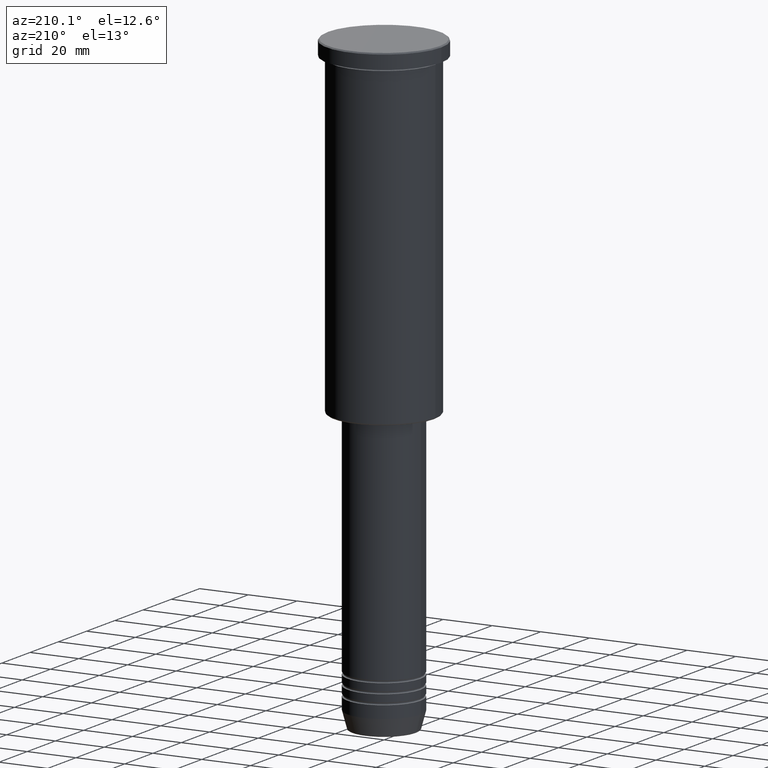
[diagram: clean part render]
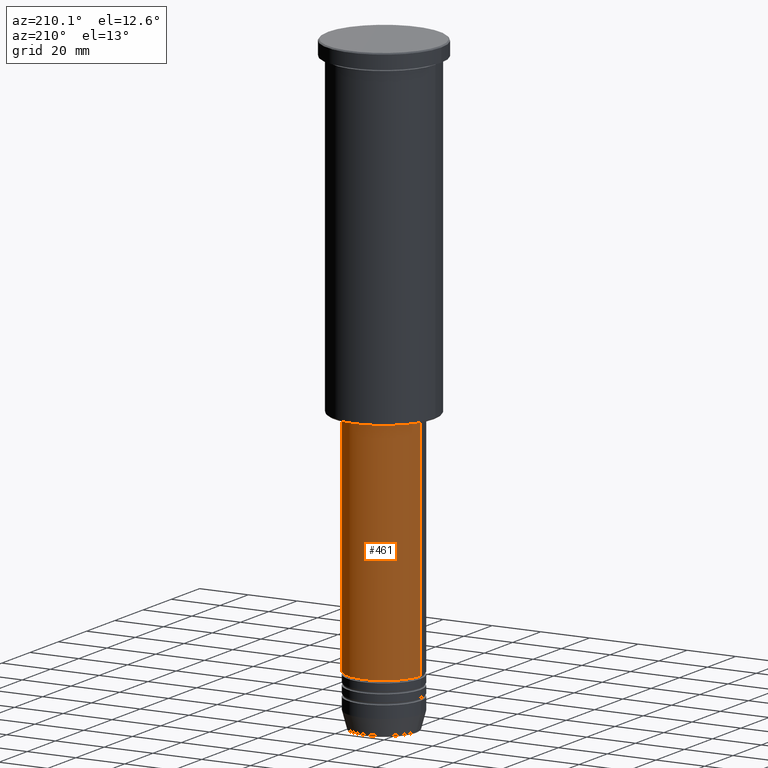
[diagram: same view with one face highlighted and labeled with its STEP entity id]
A machine part, auxiliary view. The second image highlights one B-rep face of the part: STEP entity #461.
In plain terms, the highlighted cylindrical surface (partial cylindrical patch) has radius 15 mm, axis along (-0, -0, 1).
Its self-contained STEP definition (entity closure, byte-faithful):
#4 = VERTEX_POINT ( 'NONE', #311 ) ;
#21 = CARTESIAN_POINT ( 'NONE',  ( 0.000000000000000000, 0.000000000000000000, -137.0000000000000000 ) ) ;
#104 = CARTESIAN_POINT ( 'NONE',  ( -15.00000000000000000, 1.836970198721029589E-15, 0.000000000000000000 ) ) ;
#110 = DIRECTION ( 'NONE',  ( -0.000000000000000000, -0.000000000000000000, 1.000000000000000000 ) ) ;
#188 = AXIS2_PLACEMENT_3D ( 'NONE', #950, #527, #996 ) ;
#242 = CARTESIAN_POINT ( 'NONE',  ( 15.00000000000000000, 0.000000000000000000, 0.000000000000000000 ) ) ;
#311 = CARTESIAN_POINT ( 'NONE',  ( -15.00000000000000000, 1.836970198721029589E-15, -229.9999999999998863 ) ) ;
#332 = VERTEX_POINT ( 'NONE', #860 ) ;
#350 = DIRECTION ( 'NONE',  ( -0.000000000000000000, -0.000000000000000000, 1.000000000000000000 ) ) ;
#382 = DIRECTION ( 'NONE',  ( -0.000000000000000000, -0.000000000000000000, 1.000000000000000000 ) ) ;
#397 = EDGE_CURVE ( 'NONE', #4, #1149, #930, .T. ) ;
#448 = LINE ( 'NONE', #242, #1060 ) ;
#461 = ADVANCED_FACE ( 'NONE', ( #576 ), #580, .T. ) ;
#527 = DIRECTION ( 'NONE',  ( -0.000000000000000000, -0.000000000000000000, 1.000000000000000000 ) ) ;
#560 = ORIENTED_EDGE ( 'NONE', *, *, #397, .T. ) ;
#562 = EDGE_CURVE ( 'NONE', #734, #332, #448, .T. ) ;
#567 = EDGE_CURVE ( 'NONE', #734, #4, #866, .T. ) ;
#576 = FACE_OUTER_BOUND ( 'NONE', #1016, .T. ) ;
#580 = CYLINDRICAL_SURFACE ( 'NONE', #188, 15.00000000000000000 ) ;
#645 = AXIS2_PLACEMENT_3D ( 'NONE', #1158, #1068, #1055 ) ;
#647 = CARTESIAN_POINT ( 'NONE',  ( 15.00000000000000000, 0.000000000000000000, -229.9999999999998863 ) ) ;
#652 = CARTESIAN_POINT ( 'NONE',  ( -15.00000000000000000, 1.836970198721029589E-15, -137.0000000000000000 ) ) ;
#734 = VERTEX_POINT ( 'NONE', #647 ) ;
#749 = DIRECTION ( 'NONE',  ( 1.000000000000000000, 0.000000000000000000, 0.000000000000000000 ) ) ;
#754 = ORIENTED_EDGE ( 'NONE', *, *, #562, .F. ) ;
#756 = EDGE_CURVE ( 'NONE', #332, #1149, #942, .T. ) ;
#764 = AXIS2_PLACEMENT_3D ( 'NONE', #21, #382, #749 ) ;
#860 = CARTESIAN_POINT ( 'NONE',  ( 15.00000000000000000, 0.000000000000000000, -137.0000000000000000 ) ) ;
#866 = CIRCLE ( 'NONE', #645, 15.00000000000000000 ) ;
#901 = VECTOR ( 'NONE', #110, 1000.000000000000000 ) ;
#930 = LINE ( 'NONE', #104, #901 ) ;
#942 = CIRCLE ( 'NONE', #764, 15.00000000000000000 ) ;
#950 = CARTESIAN_POINT ( 'NONE',  ( 0.000000000000000000, 0.000000000000000000, 0.000000000000000000 ) ) ;
#996 = DIRECTION ( 'NONE',  ( 1.000000000000000000, 0.000000000000000000, 0.000000000000000000 ) ) ;
#1016 = EDGE_LOOP ( 'NONE', ( #1105, #560, #1065, #754 ) ) ;
#1055 = DIRECTION ( 'NONE',  ( 1.000000000000000000, 0.000000000000000000, 0.000000000000000000 ) ) ;
#1060 = VECTOR ( 'NONE', #350, 1000.000000000000000 ) ;
#1065 = ORIENTED_EDGE ( 'NONE', *, *, #756, .F. ) ;
#1068 = DIRECTION ( 'NONE',  ( -0.000000000000000000, -0.000000000000000000, 1.000000000000000000 ) ) ;
#1105 = ORIENTED_EDGE ( 'NONE', *, *, #567, .T. ) ;
#1149 = VERTEX_POINT ( 'NONE', #652 ) ;
#1158 = CARTESIAN_POINT ( 'NONE',  ( 0.000000000000000000, 0.000000000000000000, -229.9999999999998863 ) ) ;